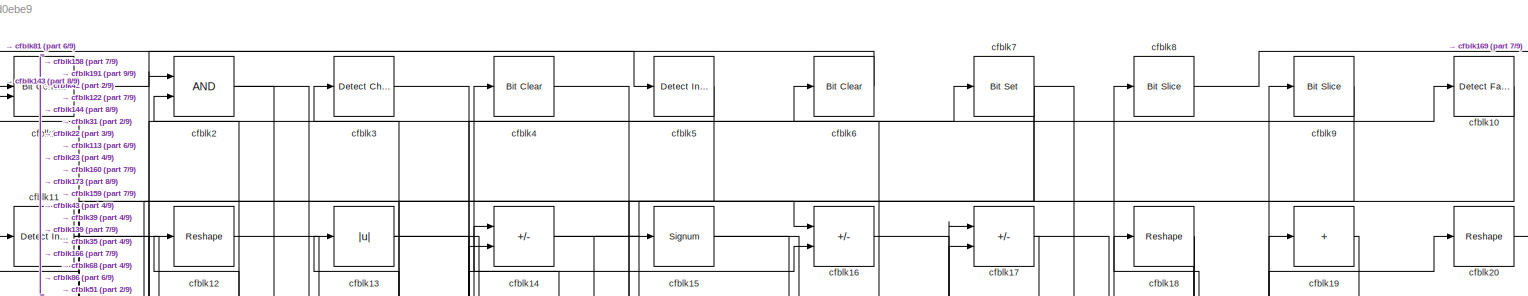
[diagram: root canvas - part 1/9, full width, top band]
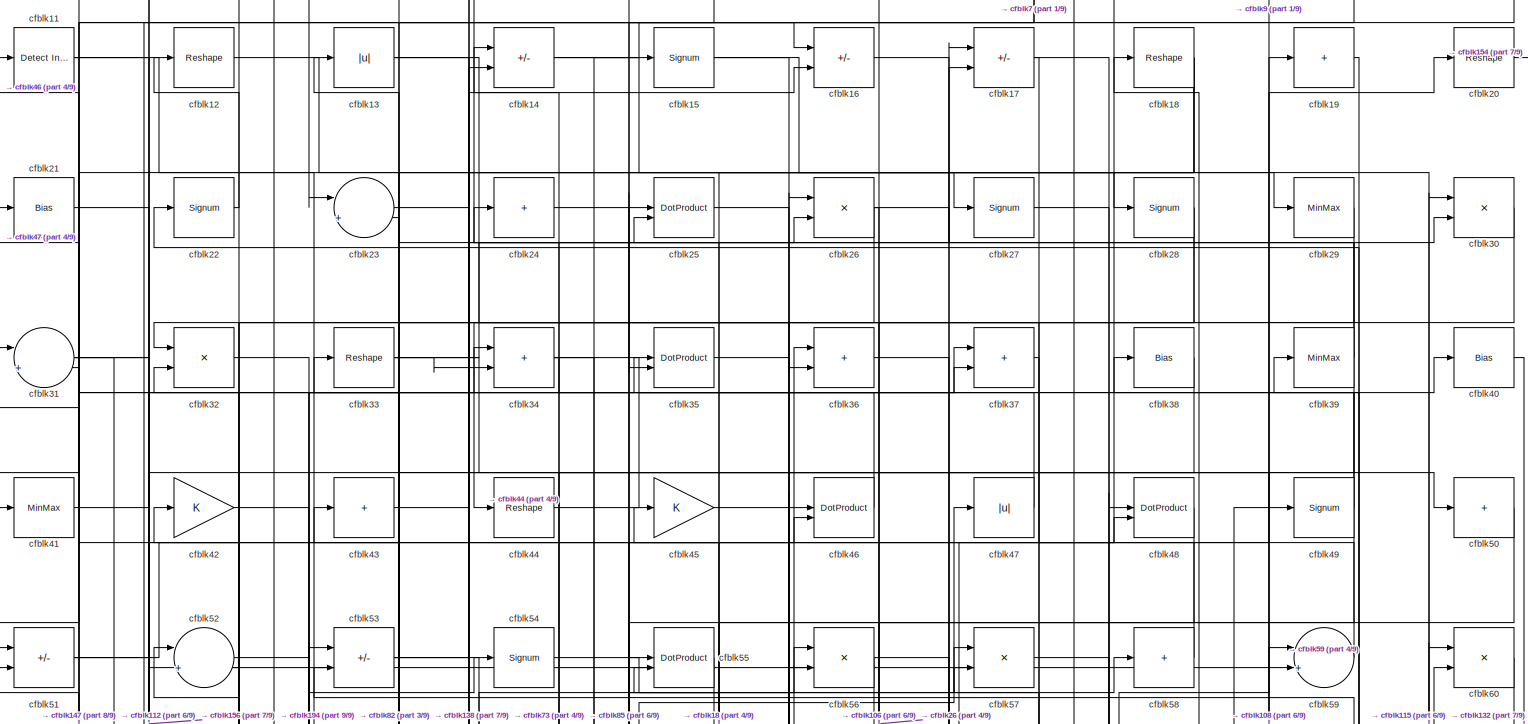
[diagram: root canvas - part 2/9, full width, top band]
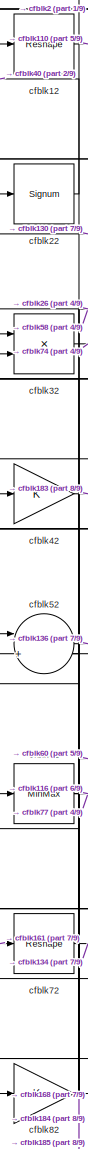
[diagram: root canvas - part 3/9, top left region]
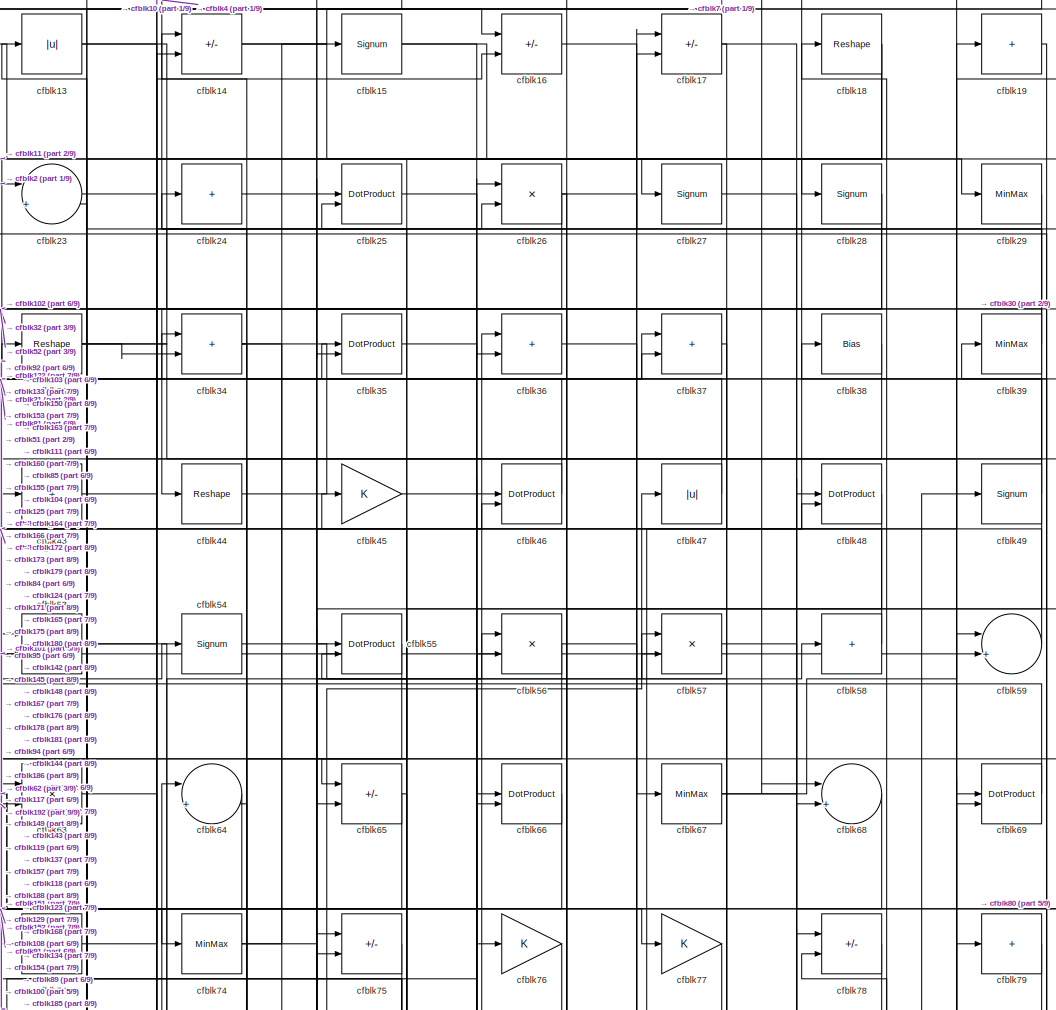
[diagram: root canvas - part 4/9, top center region]
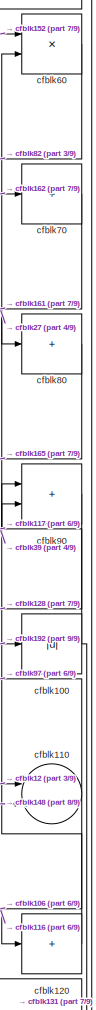
[diagram: root canvas - part 5/9, middle right region]
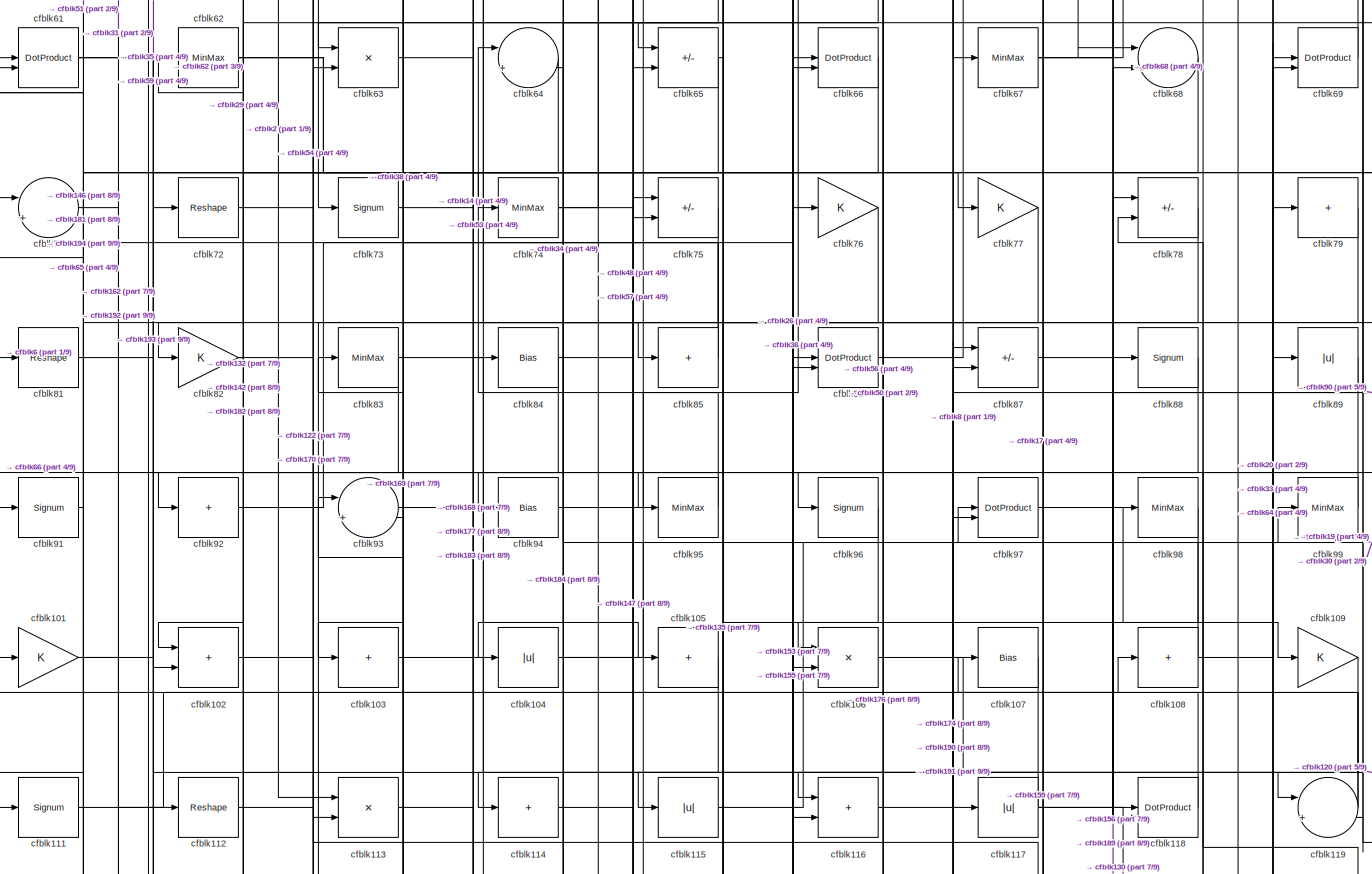
[diagram: root canvas - part 6/9, full width, middle band]
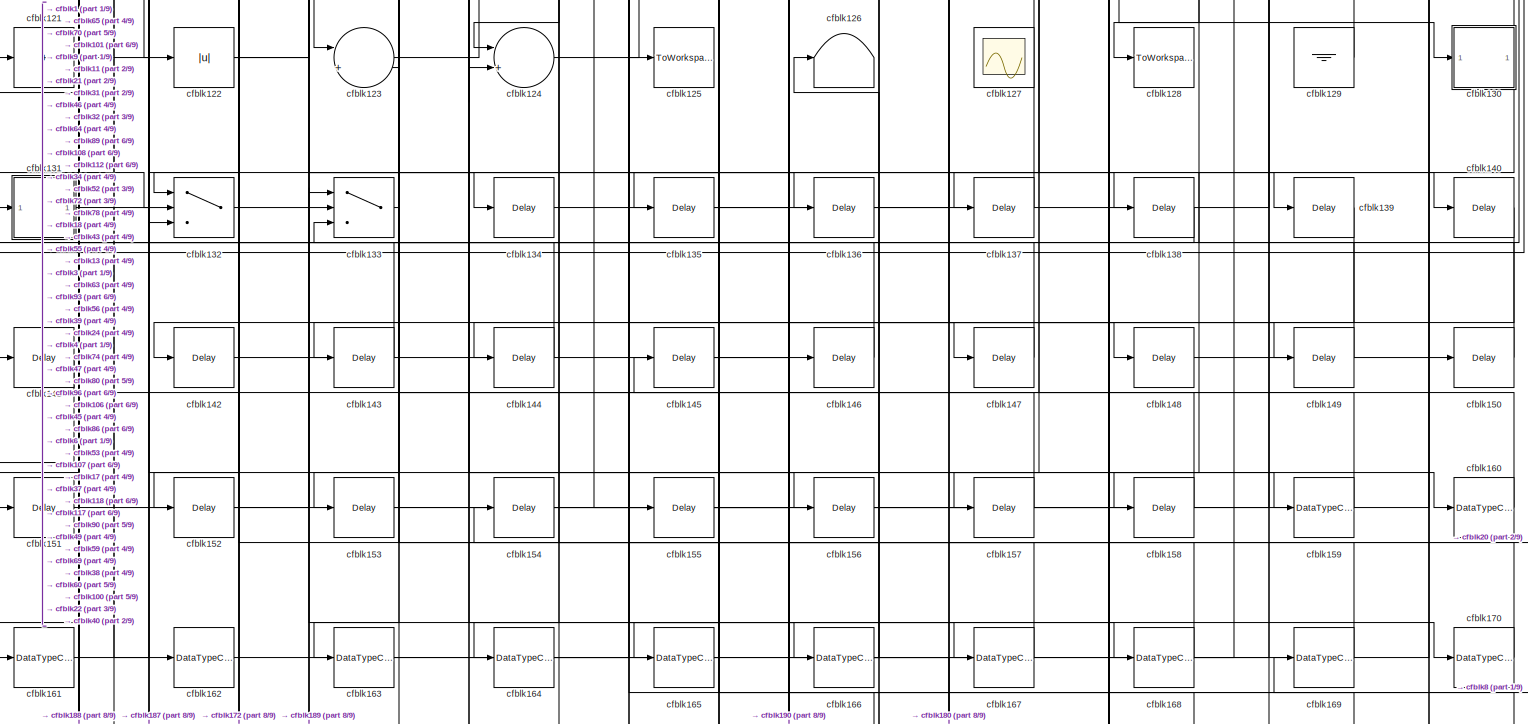
[diagram: root canvas - part 7/9, full width, bottom band]
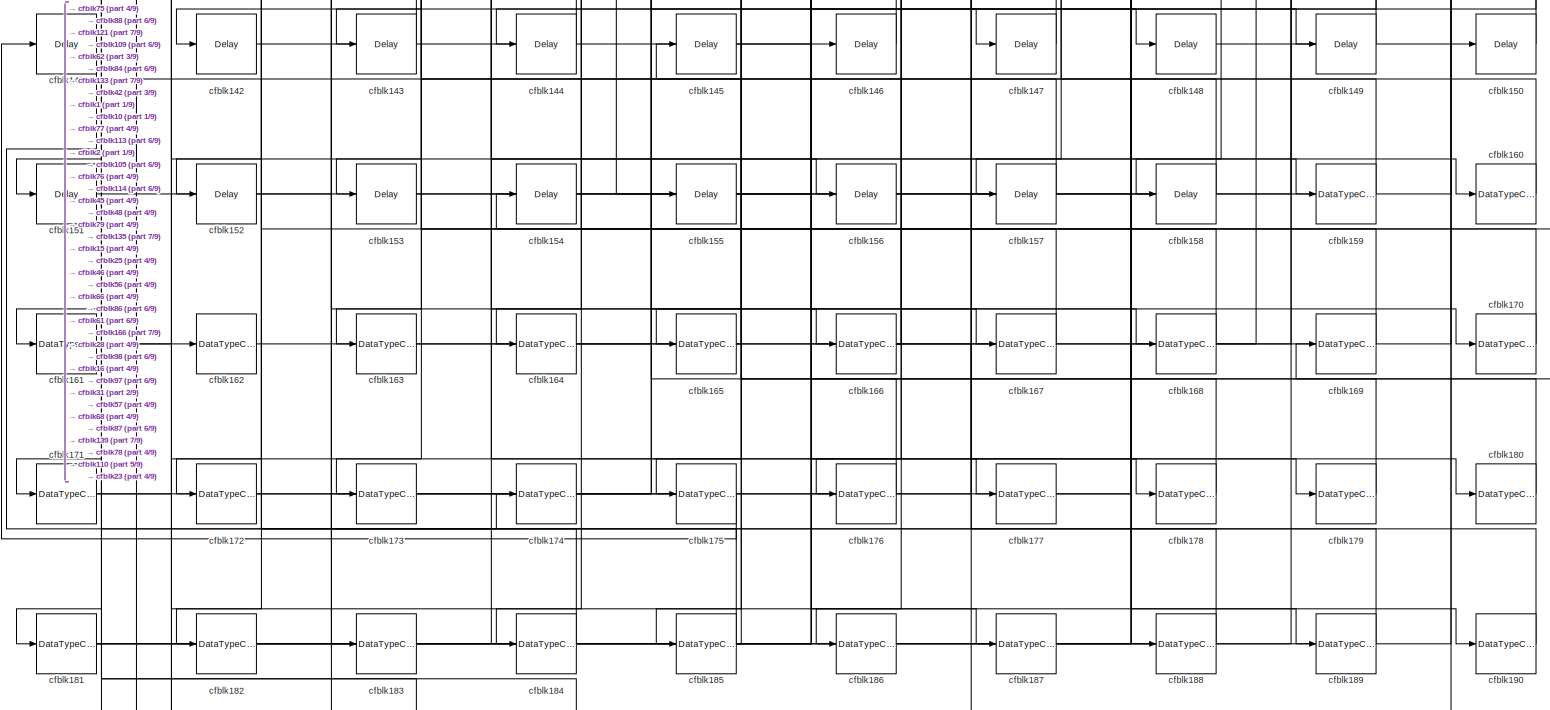
[diagram: root canvas - part 8/9, full width, bottom band]
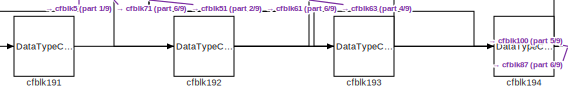
[diagram: root canvas - part 9/9, bottom left region]
MODEL slx_074413d0ebe9
KIND model
CONFIG AbsTol = auto
CONFIG EnableMultiTasking = off
CONFIG FixedStep = auto
CONFIG MaxStep = auto
CONFIG MinStep = auto
CONFIG RelTol = 1e-3
CONFIG SampleTimeConstraint = Unconstrained
CONFIG SolverName = VariableStepAuto
CONFIG StartTime = 0.0
CONFIG StopTime = 10.0
BLOCK [Reference] cfblk1  REF=hdlsllib/Logic and Bit
Operations/Bit Concat
  SourceBlock = hdlsllib/Logic and Bit\nOperations/Bit Concat
  SourceType = Bit Concat
BLOCK [Reference] cfblk10  REF=hdlsllib/Logic and Bit
Operations/Detect Fall
Negative
  SourceBlock = hdlsllib/Logic and Bit\nOperations/Detect Fall\nNegative
  SourceType = Detect Fall Negative
BLOCK [Abs] cfblk100
  SaturateOnIntegerOverflow = off
BLOCK [Gain] cfblk101
BLOCK [Sum] cfblk102
  IconShape = rectangular
BLOCK [Sum] cfblk103
  IconShape = rectangular
  Inputs = +
BLOCK [Abs] cfblk104
  SaturateOnIntegerOverflow = off
BLOCK [Sum] cfblk105
  IconShape = rectangular
  Inputs = +
BLOCK [Product] cfblk106
  Inputs = */
  RndMeth = Zero
  SaturateOnIntegerOverflow = on
BLOCK [Bias] cfblk107
  Bias = 0.0
  SaturateOnIntegerOverflow = off
BLOCK [Sum] cfblk108
  IconShape = rectangular
  Inputs = +
BLOCK [Gain] cfblk109
BLOCK [Reference] cfblk11  REF=simulink/Logic and Bit
Operations/Detect
Increase
  LibrarySourceBlock = hdlsllib/Logic and Bit\nOperations/Detect\nIncrease
  SourceBlock = simulink/Logic and Bit\nOperations/Detect\nIncrease
  SourceType = Detect Increase
BLOCK [Sum] cfblk110
  Inputs = |++
BLOCK [Signum] cfblk111
BLOCK [Reshape] cfblk112
BLOCK [Product] cfblk113
  Inputs = */
  RndMeth = Zero
  SaturateOnIntegerOverflow = on
BLOCK [Sum] cfblk114
  IconShape = rectangular
  Inputs = +
BLOCK [Abs] cfblk115
  SaturateOnIntegerOverflow = off
BLOCK [Sum] cfblk116
  IconShape = rectangular
BLOCK [Abs] cfblk117
  SaturateOnIntegerOverflow = off
BLOCK [DotProduct] cfblk118
  OutDataTypeStr = Inherit: Inherit via internal rule
BLOCK [Sum] cfblk119
  Inputs = |++
BLOCK [Reshape] cfblk12
BLOCK [Sum] cfblk120
  IconShape = rectangular
  Inputs = +
BLOCK [Sum] cfblk121
  IconShape = rectangular
  Inputs = +
BLOCK [Abs] cfblk122
  SaturateOnIntegerOverflow = off
BLOCK [Sum] cfblk123
  Inputs = |++
BLOCK [Sum] cfblk124
  Inputs = |++
BLOCK [ToWorkspace] cfblk125
  MaxDataPoints = inf
  SampleTime = -1
  SaveFormat = Timeseries
  VariableName = simout
BLOCK [Terminator] cfblk126
BLOCK [Scope] cfblk127
  Floating = on
  NumInputPorts = 1
  ScopeSpecificationString = Simulink.scopes.TimeScopeBlockCfg('CurrentConfiguration', extmgr.ConfigurationSet(extmgr.Configuration('Core','General UI',true,'FigureColor',[0.156862745098039 0.156862745098039 0.156862745098039]),extmgr.Configuration('Core','Source UI',true),extmgr.Configuration('Sources','WiredSimulink',true,'DataLoggingVariableName','ScopeData1','DataLoggingSaveFormat','StructureWithTime','DataLoggingLimitDat...<+2713ch>
BLOCK [ToWorkspace] cfblk128
  MaxDataPoints = inf
  SampleTime = -1
  SaveFormat = Timeseries
  VariableName = simout
BLOCK [Ground] cfblk129
BLOCK [Abs] cfblk13
  SaturateOnIntegerOverflow = off
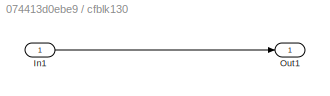
BLOCK [SubSystem] cfblk130
  LibrarySourceBlock = hdlsllib/Ports &\nSubsystems/Subsystem
BLOCK [Inport] cfblk130/In1
BLOCK [Outport] cfblk130/Out1
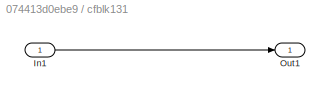
BLOCK [SubSystem] cfblk131
  LibrarySourceBlock = hdlsllib/Ports &\nSubsystems/Subsystem
BLOCK [Inport] cfblk131/In1
BLOCK [Outport] cfblk131/Out1
BLOCK [Switch] cfblk132
  InputSameDT = off
  SaturateOnIntegerOverflow = off
BLOCK [Switch] cfblk133
  InputSameDT = off
  SaturateOnIntegerOverflow = off
BLOCK [Delay] cfblk134
  InputPortMap = u0
  SampleTime = 1
BLOCK [Delay] cfblk135
  InputPortMap = u0
  SampleTime = 1
BLOCK [Delay] cfblk136
  InputPortMap = u0
  SampleTime = 1
BLOCK [Delay] cfblk137
  InputPortMap = u0
  SampleTime = 1
BLOCK [Delay] cfblk138
  InputPortMap = u0
  SampleTime = 1
BLOCK [Delay] cfblk139
  InputPortMap = u0
  SampleTime = 1
BLOCK [Sum] cfblk14
  IconShape = rectangular
  Inputs = +-
BLOCK [Delay] cfblk140
  InputPortMap = u0
  SampleTime = 1
BLOCK [Delay] cfblk141
  InputPortMap = u0
  SampleTime = 1
BLOCK [Delay] cfblk142
  InputPortMap = u0
  SampleTime = 1
BLOCK [Delay] cfblk143
  InputPortMap = u0
  SampleTime = 1
BLOCK [Delay] cfblk144
  InputPortMap = u0
  SampleTime = 1
BLOCK [Delay] cfblk145
  InputPortMap = u0
  SampleTime = 1
BLOCK [Delay] cfblk146
  InputPortMap = u0
  SampleTime = 1
BLOCK [Delay] cfblk147
  InputPortMap = u0
  SampleTime = 1
BLOCK [Delay] cfblk148
  InputPortMap = u0
  SampleTime = 1
BLOCK [Delay] cfblk149
  InputPortMap = u0
  SampleTime = 1
BLOCK [Signum] cfblk15
BLOCK [Delay] cfblk150
  InputPortMap = u0
  SampleTime = 1
BLOCK [Delay] cfblk151
  InputPortMap = u0
  SampleTime = 1
BLOCK [Delay] cfblk152
  InputPortMap = u0
  SampleTime = 1
BLOCK [Delay] cfblk153
  InputPortMap = u0
  SampleTime = 1
BLOCK [Delay] cfblk154
  InputPortMap = u0
  SampleTime = 1
BLOCK [Delay] cfblk155
  InputPortMap = u0
  SampleTime = 1
BLOCK [Delay] cfblk156
  InputPortMap = u0
  SampleTime = 1
BLOCK [Delay] cfblk157
  InputPortMap = u0
  SampleTime = 1
BLOCK [Delay] cfblk158
  InputPortMap = u0
  SampleTime = 1
BLOCK [DataTypeConversion] cfblk159
  OutDataTypeStr = uint8
  RndMeth = Floor
  SaturateOnIntegerOverflow = off
BLOCK [Sum] cfblk16
  IconShape = rectangular
  Inputs = +-
BLOCK [DataTypeConversion] cfblk160
  OutDataTypeStr = uint8
  RndMeth = Floor
  SaturateOnIntegerOverflow = off
BLOCK [DataTypeConversion] cfblk161
  OutDataTypeStr = uint8
  RndMeth = Floor
  SaturateOnIntegerOverflow = off
BLOCK [DataTypeConversion] cfblk162
  OutDataTypeStr = uint8
  RndMeth = Floor
  SaturateOnIntegerOverflow = off
BLOCK [DataTypeConversion] cfblk163
  OutDataTypeStr = uint8
  RndMeth = Floor
  SaturateOnIntegerOverflow = off
BLOCK [DataTypeConversion] cfblk164
  OutDataTypeStr = uint8
  RndMeth = Floor
  SaturateOnIntegerOverflow = off
BLOCK [DataTypeConversion] cfblk165
  OutDataTypeStr = uint8
  RndMeth = Floor
  SaturateOnIntegerOverflow = off
BLOCK [DataTypeConversion] cfblk166
  RndMeth = Floor
  SaturateOnIntegerOverflow = off
BLOCK [DataTypeConversion] cfblk167
  OutDataTypeStr = uint8
  RndMeth = Floor
  SaturateOnIntegerOverflow = off
BLOCK [DataTypeConversion] cfblk168
  RndMeth = Floor
  SaturateOnIntegerOverflow = off
BLOCK [DataTypeConversion] cfblk169
  OutDataTypeStr = uint8
  RndMeth = Floor
  SaturateOnIntegerOverflow = off
BLOCK [Sum] cfblk17
  IconShape = rectangular
  Inputs = +-
BLOCK [DataTypeConversion] cfblk170
  OutDataTypeStr = uint8
  RndMeth = Floor
  SaturateOnIntegerOverflow = off
BLOCK [DataTypeConversion] cfblk171
  RndMeth = Floor
  SaturateOnIntegerOverflow = off
BLOCK [DataTypeConversion] cfblk172
  OutDataTypeStr = uint8
  RndMeth = Floor
  SaturateOnIntegerOverflow = off
BLOCK [DataTypeConversion] cfblk173
  OutDataTypeStr = uint8
  RndMeth = Floor
  SaturateOnIntegerOverflow = off
BLOCK [DataTypeConversion] cfblk174
  OutDataTypeStr = uint8
  RndMeth = Floor
  SaturateOnIntegerOverflow = off
BLOCK [DataTypeConversion] cfblk175
  OutDataTypeStr = uint8
  RndMeth = Floor
  SaturateOnIntegerOverflow = off
BLOCK [DataTypeConversion] cfblk176
  OutDataTypeStr = uint8
  RndMeth = Floor
  SaturateOnIntegerOverflow = off
BLOCK [DataTypeConversion] cfblk177
  OutDataTypeStr = uint8
  RndMeth = Floor
  SaturateOnIntegerOverflow = off
BLOCK [DataTypeConversion] cfblk178
  OutDataTypeStr = uint8
  RndMeth = Floor
  SaturateOnIntegerOverflow = off
BLOCK [DataTypeConversion] cfblk179
  OutDataTypeStr = uint8
  RndMeth = Floor
  SaturateOnIntegerOverflow = off
BLOCK [Reshape] cfblk18
BLOCK [DataTypeConversion] cfblk180
  OutDataTypeStr = uint8
  RndMeth = Floor
  SaturateOnIntegerOverflow = off
BLOCK [DataTypeConversion] cfblk181
  RndMeth = Floor
  SaturateOnIntegerOverflow = off
BLOCK [DataTypeConversion] cfblk182
  OutDataTypeStr = uint8
  RndMeth = Floor
  SaturateOnIntegerOverflow = off
BLOCK [DataTypeConversion] cfblk183
  OutDataTypeStr = uint8
  RndMeth = Floor
  SaturateOnIntegerOverflow = off
BLOCK [DataTypeConversion] cfblk184
  OutDataTypeStr = uint8
  RndMeth = Floor
  SaturateOnIntegerOverflow = off
BLOCK [DataTypeConversion] cfblk185
  RndMeth = Floor
  SaturateOnIntegerOverflow = off
BLOCK [DataTypeConversion] cfblk186
  OutDataTypeStr = uint8
  RndMeth = Floor
  SaturateOnIntegerOverflow = off
BLOCK [DataTypeConversion] cfblk187
  OutDataTypeStr = uint8
  RndMeth = Floor
  SaturateOnIntegerOverflow = off
BLOCK [DataTypeConversion] cfblk188
  OutDataTypeStr = uint8
  RndMeth = Floor
  SaturateOnIntegerOverflow = off
BLOCK [DataTypeConversion] cfblk189
  OutDataTypeStr = uint8
  RndMeth = Floor
  SaturateOnIntegerOverflow = off
BLOCK [Sum] cfblk19
  IconShape = rectangular
  Inputs = +
BLOCK [DataTypeConversion] cfblk190
  OutDataTypeStr = uint8
  RndMeth = Floor
  SaturateOnIntegerOverflow = off
BLOCK [DataTypeConversion] cfblk191
  OutDataTypeStr = uint8
  RndMeth = Floor
  SaturateOnIntegerOverflow = off
BLOCK [DataTypeConversion] cfblk192
  RndMeth = Floor
  SaturateOnIntegerOverflow = off
BLOCK [DataTypeConversion] cfblk193
  OutDataTypeStr = uint8
  RndMeth = Floor
  SaturateOnIntegerOverflow = off
BLOCK [DataTypeConversion] cfblk194
  OutDataTypeStr = uint8
  RndMeth = Floor
  SaturateOnIntegerOverflow = off
BLOCK [Logic] cfblk2
  AllPortsSameDT = off
  OutDataTypeStr = boolean
BLOCK [Reshape] cfblk20
BLOCK [Bias] cfblk21
  Bias = 0.0
  SaturateOnIntegerOverflow = off
BLOCK [Signum] cfblk22
BLOCK [Sum] cfblk23
  Inputs = |++
BLOCK [Sum] cfblk24
  IconShape = rectangular
  Inputs = +
BLOCK [DotProduct] cfblk25
  OutDataTypeStr = Inherit: Inherit via internal rule
BLOCK [Product] cfblk26
  Inputs = */
  RndMeth = Zero
  SaturateOnIntegerOverflow = on
BLOCK [Signum] cfblk27
BLOCK [Signum] cfblk28
BLOCK [MinMax] cfblk29
BLOCK [Reference] cfblk3  REF=simulink/Logic and Bit
Operations/Detect
Change
  LibrarySourceBlock = hdlsllib/Logic and Bit\nOperations/Detect\nChange
  SourceBlock = simulink/Logic and Bit\nOperations/Detect\nChange
  SourceType = Detect Change
BLOCK [Product] cfblk30
  Inputs = */
  RndMeth = Zero
  SaturateOnIntegerOverflow = on
BLOCK [Sum] cfblk31
  Inputs = |++
BLOCK [Product] cfblk32
  Inputs = */
  RndMeth = Zero
  SaturateOnIntegerOverflow = on
BLOCK [Reshape] cfblk33
BLOCK [Sum] cfblk34
  IconShape = rectangular
BLOCK [DotProduct] cfblk35
  OutDataTypeStr = Inherit: Inherit via internal rule
BLOCK [Sum] cfblk36
  IconShape = rectangular
BLOCK [Sum] cfblk37
  IconShape = rectangular
BLOCK [Bias] cfblk38
  Bias = 0.0
  SaturateOnIntegerOverflow = off
BLOCK [MinMax] cfblk39
BLOCK [Reference] cfblk4  REF=simulink/Logic and Bit
Operations/Bit Clear
  LibrarySourceBlock = hdlsllib/Logic and Bit\nOperations/Bit Clear
  SourceBlock = simulink/Logic and Bit\nOperations/Bit Clear
  SourceType = Bit Clear
BLOCK [Bias] cfblk40
  Bias = 0.0
  SaturateOnIntegerOverflow = off
BLOCK [MinMax] cfblk41
BLOCK [Gain] cfblk42
BLOCK [Sum] cfblk43
  IconShape = rectangular
  Inputs = +
BLOCK [Reshape] cfblk44
BLOCK [Gain] cfblk45
BLOCK [DotProduct] cfblk46
  OutDataTypeStr = Inherit: Inherit via internal rule
BLOCK [Abs] cfblk47
  SaturateOnIntegerOverflow = off
BLOCK [DotProduct] cfblk48
  OutDataTypeStr = Inherit: Inherit via internal rule
BLOCK [Signum] cfblk49
BLOCK [Reference] cfblk5  REF=simulink/Logic and Bit
Operations/Detect
Increase
  LibrarySourceBlock = hdlsllib/Logic and Bit\nOperations/Detect\nIncrease
  SourceBlock = simulink/Logic and Bit\nOperations/Detect\nIncrease
  SourceType = Detect Increase
BLOCK [Sum] cfblk50
  IconShape = rectangular
  Inputs = +
BLOCK [Sum] cfblk51
  IconShape = rectangular
  Inputs = +-
BLOCK [Sum] cfblk52
  Inputs = |++
BLOCK [Sum] cfblk53
  IconShape = rectangular
  Inputs = +-
BLOCK [Signum] cfblk54
BLOCK [DotProduct] cfblk55
  OutDataTypeStr = Inherit: Inherit via internal rule
BLOCK [Product] cfblk56
  Inputs = */
  RndMeth = Zero
  SaturateOnIntegerOverflow = on
BLOCK [Product] cfblk57
  Inputs = */
  RndMeth = Zero
  SaturateOnIntegerOverflow = on
BLOCK [Sum] cfblk58
  IconShape = rectangular
  Inputs = +
BLOCK [Sum] cfblk59
  Inputs = |++
BLOCK [Reference] cfblk6  REF=simulink/Logic and Bit
Operations/Bit Clear
  LibrarySourceBlock = hdlsllib/Logic and Bit\nOperations/Bit Clear
  SourceBlock = simulink/Logic and Bit\nOperations/Bit Clear
  SourceType = Bit Clear
BLOCK [Product] cfblk60
  Inputs = */
  RndMeth = Zero
  SaturateOnIntegerOverflow = on
BLOCK [DotProduct] cfblk61
  OutDataTypeStr = Inherit: Inherit via internal rule
BLOCK [MinMax] cfblk62
BLOCK [Product] cfblk63
  Inputs = */
  RndMeth = Zero
  SaturateOnIntegerOverflow = on
BLOCK [Sum] cfblk64
  Inputs = |++
BLOCK [Sum] cfblk65
  IconShape = rectangular
  Inputs = +-
BLOCK [DotProduct] cfblk66
  OutDataTypeStr = Inherit: Inherit via internal rule
BLOCK [MinMax] cfblk67
BLOCK [Sum] cfblk68
  Inputs = |++
BLOCK [DotProduct] cfblk69
  OutDataTypeStr = Inherit: Inherit via internal rule
BLOCK [Reference] cfblk7  REF=simulink/Logic and Bit
Operations/Bit Set
  LibrarySourceBlock = hdlsllib/Logic and Bit\nOperations/Bit Set
  SourceBlock = simulink/Logic and Bit\nOperations/Bit Set
  SourceType = Bit Set
BLOCK [Sum] cfblk70
  IconShape = rectangular
  Inputs = +
BLOCK [Sum] cfblk71
  Inputs = |++
BLOCK [Reshape] cfblk72
BLOCK [Signum] cfblk73
BLOCK [MinMax] cfblk74
BLOCK [Sum] cfblk75
  IconShape = rectangular
  Inputs = +-
BLOCK [Gain] cfblk76
BLOCK [Gain] cfblk77
BLOCK [Sum] cfblk78
  IconShape = rectangular
  Inputs = +-
BLOCK [Sum] cfblk79
  IconShape = rectangular
  Inputs = +
BLOCK [Reference] cfblk8  REF=hdlsllib/Logic and Bit
Operations/Bit Slice
  SourceBlock = hdlsllib/Logic and Bit\nOperations/Bit Slice
  SourceType = Bit Slice
BLOCK [Sum] cfblk80
  IconShape = rectangular
  Inputs = +
BLOCK [Reshape] cfblk81
BLOCK [Gain] cfblk82
BLOCK [MinMax] cfblk83
BLOCK [Bias] cfblk84
  Bias = 0.0
  SaturateOnIntegerOverflow = off
BLOCK [Sum] cfblk85
  IconShape = rectangular
  Inputs = +
BLOCK [DotProduct] cfblk86
  OutDataTypeStr = Inherit: Inherit via internal rule
BLOCK [Sum] cfblk87
  IconShape = rectangular
  Inputs = +-
BLOCK [Signum] cfblk88
BLOCK [Abs] cfblk89
  SaturateOnIntegerOverflow = off
BLOCK [Reference] cfblk9  REF=hdlsllib/Logic and Bit
Operations/Bit Slice
  SourceBlock = hdlsllib/Logic and Bit\nOperations/Bit Slice
  SourceType = Bit Slice
BLOCK [Sum] cfblk90
  IconShape = rectangular
BLOCK [Signum] cfblk91
BLOCK [Sum] cfblk92
  IconShape = rectangular
  Inputs = +
BLOCK [Sum] cfblk93
  Inputs = |++
BLOCK [Bias] cfblk94
  Bias = 0.0
  SaturateOnIntegerOverflow = off
BLOCK [MinMax] cfblk95
BLOCK [Signum] cfblk96
BLOCK [DotProduct] cfblk97
  OutDataTypeStr = Inherit: Inherit via internal rule
BLOCK [MinMax] cfblk98
BLOCK [MinMax] cfblk99
NET cfblk100:1 -> cfblk131:1, cfblk39:1
NET cfblk101:1 -> cfblk162:1, cfblk59:2
LINE cfblk102:1 -> cfblk54:1
LINE cfblk103:1 -> cfblk119:1
NET cfblk104:1 -> cfblk57:2, cfblk99:1
LINE cfblk105:1 -> cfblk184:1
LINE cfblk106:1 -> cfblk120:1
LINE cfblk107:1 -> cfblk114:1
NET cfblk108:1 -> cfblk20:1, cfblk64:2
LINE cfblk109:1 -> cfblk182:1
LINE cfblk10:1 -> cfblk173:1
NET cfblk110:1 -> cfblk116:1, cfblk97:1
LINE cfblk111:1 -> cfblk14:2
LINE cfblk112:1 -> cfblk170:1
LINE cfblk113:1 -> cfblk177:1
LINE cfblk114:1 -> cfblk147:1
LINE cfblk115:1 -> cfblk30:1
LINE cfblk116:1 -> cfblk90:1
NET cfblk117:1 -> cfblk115:1, cfblk130:1, cfblk90:2
LINE cfblk118:1 -> cfblk101:1
NET cfblk119:1 -> cfblk57:1, cfblk83:1
NET cfblk11:1 -> cfblk138:1, cfblk73:1
LINE cfblk120:1 -> cfblk60:2
LINE cfblk121:1 -> cfblk187:1
NET cfblk122:1 -> cfblk108:1, cfblk34:1
LINE cfblk123:1 -> cfblk56:1
LINE cfblk124:1 -> cfblk47:1
LINE cfblk129:1 -> cfblk38:1
LINE cfblk12:1 -> cfblk110:1
LINE cfblk130/In1:1 -> cfblk130/Out1:1
NET cfblk130:1 -> cfblk158:1, cfblk22:1
LINE cfblk131/In1:1 -> cfblk131/Out1:1
LINE cfblk131:1 -> cfblk46:2
LINE cfblk132:1 -> cfblk140:1
LINE cfblk133:1 -> cfblk43:1
LINE cfblk134:1 -> cfblk69:2
LINE cfblk135:1 -> cfblk190:1
LINE cfblk136:1 -> cfblk17:2
LINE cfblk137:1 -> cfblk53:1
LINE cfblk138:1 -> cfblk133:3
LINE cfblk139:1 -> cfblk172:1
NET cfblk13:1 -> cfblk124:2, cfblk36:2
LINE cfblk140:1 -> cfblk164:1
LINE cfblk141:1 -> cfblk174:1
LINE cfblk142:1 -> cfblk56:2
LINE cfblk143:1 -> cfblk1:1
LINE cfblk144:1 -> cfblk2:1
LINE cfblk145:1 -> cfblk66:2
LINE cfblk146:1 -> cfblk61:2
LINE cfblk147:1 -> cfblk31:1
LINE cfblk148:1 -> cfblk110:2
LINE cfblk149:1 -> cfblk78:2
NET cfblk14:1 -> cfblk16:1, cfblk29:1
LINE cfblk150:1 -> cfblk23:2
LINE cfblk151:1 -> cfblk133:1
LINE cfblk152:1 -> cfblk60:1
LINE cfblk153:1 -> cfblk86:1
LINE cfblk154:1 -> cfblk59:1
LINE cfblk155:1 -> cfblk106:2
LINE cfblk156:1 -> cfblk118:2
LINE cfblk157:1 -> cfblk123:2
LINE cfblk158:1 -> cfblk1:2
LINE cfblk159:1 -> cfblk107:1
NET cfblk15:1 -> cfblk148:1, cfblk28:1
LINE cfblk160:1 -> cfblk3:1
LINE cfblk161:1 -> cfblk72:1
LINE cfblk162:1 -> cfblk70:1
LINE cfblk163:1 -> cfblk69:1
LINE cfblk164:1 -> cfblk55:1
LINE cfblk165:1 -> cfblk55:2
NET cfblk166:1 -> cfblk126:1, cfblk180:1, cfblk6:1
LINE cfblk167:1 -> cfblk24:1
NET cfblk168:1 -> cfblk32:2, cfblk49:1
LINE cfblk169:1 -> cfblk93:1
LINE cfblk16:1 -> cfblk149:1
LINE cfblk170:1 -> cfblk93:2
NET cfblk171:1 -> cfblk179:1, cfblk78:1
LINE cfblk172:1 -> cfblk75:1
LINE cfblk173:1 -> cfblk75:2
LINE cfblk174:1 -> cfblk97:2
LINE cfblk175:1 -> cfblk141:1
LINE cfblk176:1 -> cfblk46:1
LINE cfblk177:1 -> cfblk98:1
LINE cfblk178:1 -> cfblk145:1
LINE cfblk179:1 -> cfblk25:1
NET cfblk17:1 -> cfblk118:1, cfblk157:1
LINE cfblk180:1 -> cfblk25:2
NET cfblk181:1 -> cfblk66:1, cfblk68:2, cfblk86:2
LINE cfblk182:1 -> cfblk88:1
LINE cfblk183:1 -> cfblk84:1
LINE cfblk184:1 -> cfblk42:1
NET cfblk185:1 -> cfblk146:1, cfblk45:1, cfblk62:1
LINE cfblk186:1 -> cfblk79:1
LINE cfblk187:1 -> cfblk150:1
LINE cfblk188:1 -> cfblk121:1
LINE cfblk189:1 -> cfblk133:2
NET cfblk18:1 -> cfblk153:1, cfblk51:1, cfblk65:1
LINE cfblk190:1 -> cfblk87:1
LINE cfblk191:1 -> cfblk87:2
NET cfblk192:1 -> cfblk100:1, cfblk63:2
LINE cfblk193:1 -> cfblk71:1
LINE cfblk194:1 -> cfblk71:2
LINE cfblk19:1 -> cfblk119:2
LINE cfblk1:1 -> cfblk5:1
LINE cfblk20:1 -> cfblk154:1
LINE cfblk21:1 -> cfblk132:3
LINE cfblk22:1 -> cfblk2:2
LINE cfblk23:1 -> cfblk27:1
LINE cfblk24:1 -> cfblk166:1
LINE cfblk25:1 -> cfblk178:1
NET cfblk26:1 -> cfblk30:2, cfblk52:2, cfblk96:1
LINE cfblk27:1 -> cfblk80:1
NET cfblk28:1 -> cfblk186:1, cfblk63:1
LINE cfblk29:1 -> cfblk102:1
NET cfblk2:1 -> cfblk113:1, cfblk23:1
LINE cfblk30:1 -> cfblk44:1
NET cfblk31:1 -> cfblk112:1, cfblk156:1, cfblk7:1
LINE cfblk32:1 -> cfblk74:1
NET cfblk33:1 -> cfblk17:1, cfblk34:2, cfblk89:1
NET cfblk34:1 -> cfblk155:1, cfblk37:2, cfblk94:1
LINE cfblk35:1 -> cfblk76:1
LINE cfblk36:1 -> cfblk67:1
LINE cfblk37:1 -> cfblk137:1
LINE cfblk38:1 -> cfblk103:1
NET cfblk39:1 -> cfblk124:1, cfblk13:1, cfblk4:1
LINE cfblk3:1 -> cfblk159:1
LINE cfblk40:1 -> cfblk132:2
LINE cfblk41:1 -> cfblk50:1
LINE cfblk42:1 -> cfblk183:1
LINE cfblk43:1 -> cfblk10:1
LINE cfblk44:1 -> cfblk37:1
LINE cfblk45:1 -> cfblk167:1
LINE cfblk46:1 -> cfblk11:1
LINE cfblk47:1 -> cfblk21:1
LINE cfblk48:1 -> cfblk175:1
NET cfblk49:1 -> cfblk14:1, cfblk18:1, cfblk65:2
LINE cfblk4:1 -> cfblk139:1
LINE cfblk50:1 -> cfblk106:1
NET cfblk51:1 -> cfblk194:1, cfblk9:1
LINE cfblk52:1 -> cfblk136:1
NET cfblk53:1 -> cfblk16:2, cfblk85:1
LINE cfblk54:1 -> cfblk58:1
LINE cfblk55:1 -> cfblk163:1
NET cfblk56:1 -> cfblk104:1, cfblk117:1
LINE cfblk57:1 -> cfblk188:1
LINE cfblk58:1 -> cfblk32:1
LINE cfblk59:1 -> cfblk31:2
LINE cfblk5:1 -> cfblk191:1
LINE cfblk60:1 -> cfblk82:1
NET cfblk61:1 -> cfblk113:2, cfblk193:1
NET cfblk62:1 -> cfblk116:2, cfblk77:1
LINE cfblk63:1 -> cfblk160:1
LINE cfblk64:1 -> cfblk152:1
NET cfblk65:1 -> cfblk151:1, cfblk95:1
LINE cfblk66:1 -> cfblk91:1
NET cfblk67:1 -> cfblk19:1, cfblk48:1
LINE cfblk68:1 -> cfblk102:2
LINE cfblk69:1 -> cfblk53:2
LINE cfblk6:1 -> cfblk81:1
LINE cfblk70:1 -> cfblk161:1
LINE cfblk71:1 -> cfblk192:1
LINE cfblk72:1 -> cfblk134:1
LINE cfblk73:1 -> cfblk26:2
NET cfblk74:1 -> cfblk125:1, cfblk15:1
LINE cfblk75:1 -> cfblk171:1
LINE cfblk76:1 -> cfblk144:1
LINE cfblk77:1 -> cfblk143:1
LINE cfblk78:1 -> cfblk123:1
LINE cfblk79:1 -> cfblk185:1
NET cfblk7:1 -> cfblk35:2, cfblk41:1, cfblk68:1
LINE cfblk80:1 -> cfblk165:1
LINE cfblk81:1 -> cfblk35:1
NET cfblk82:1 -> cfblk12:1, cfblk40:1, cfblk52:1
NET cfblk83:1 -> cfblk105:1, cfblk111:1
NET cfblk84:1 -> cfblk142:1, cfblk48:2
NET cfblk85:1 -> cfblk33:1, cfblk51:2
LINE cfblk86:1 -> cfblk8:1
LINE cfblk87:1 -> cfblk189:1
LINE cfblk88:1 -> cfblk181:1
LINE cfblk89:1 -> cfblk132:1
LINE cfblk8:1 -> cfblk169:1
LINE cfblk90:1 -> cfblk128:1
LINE cfblk91:1 -> cfblk61:1
LINE cfblk92:1 -> cfblk26:1
LINE cfblk93:1 -> cfblk168:1
LINE cfblk94:1 -> cfblk36:1
LINE cfblk95:1 -> cfblk64:1
LINE cfblk96:1 -> cfblk135:1
LINE cfblk97:1 -> cfblk109:1
LINE cfblk98:1 -> cfblk176:1
LINE cfblk99:1 -> cfblk92:1
LINE cfblk9:1 -> cfblk122:1
note: NET lines group one-source signal fan-out (src -> all destinations, sorted); 1:1 wires keep LINE
